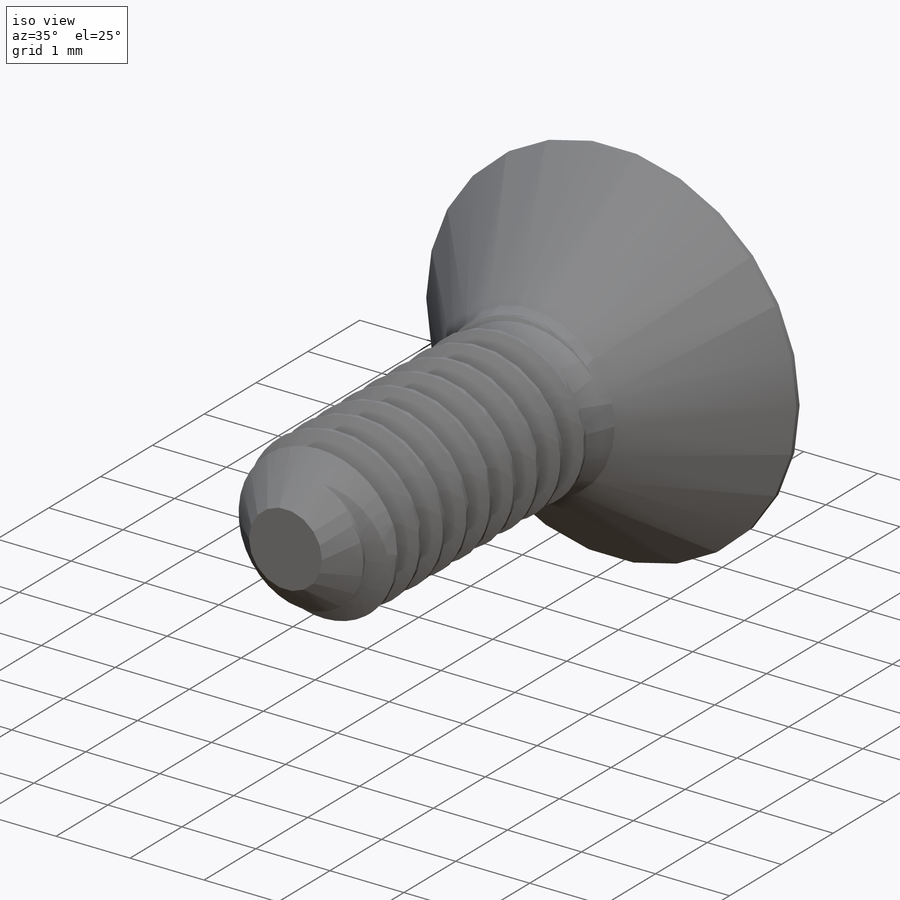
[diagram: iso view]
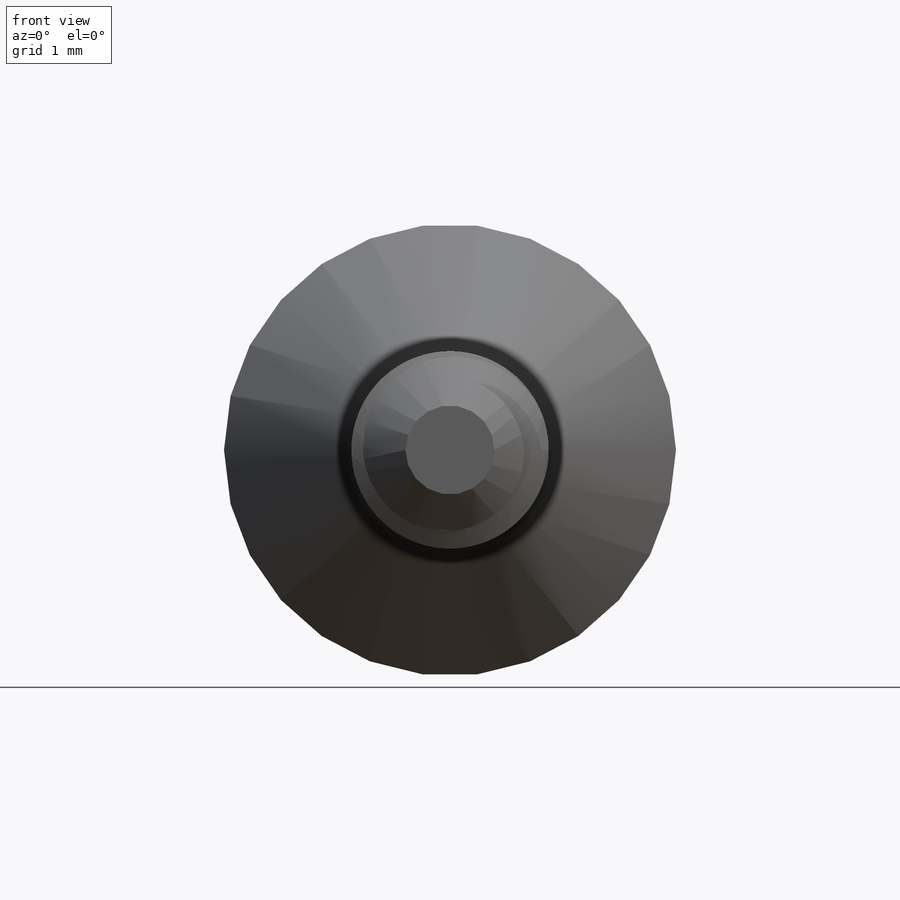
[diagram: front view]
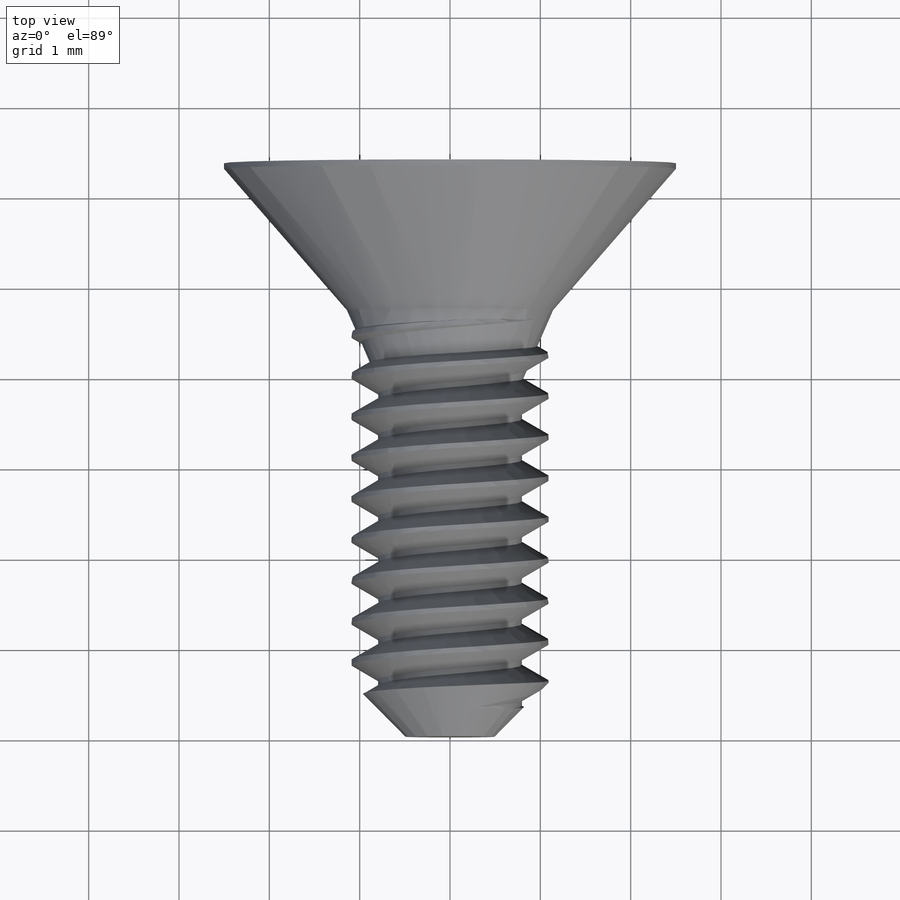
[diagram: top view]
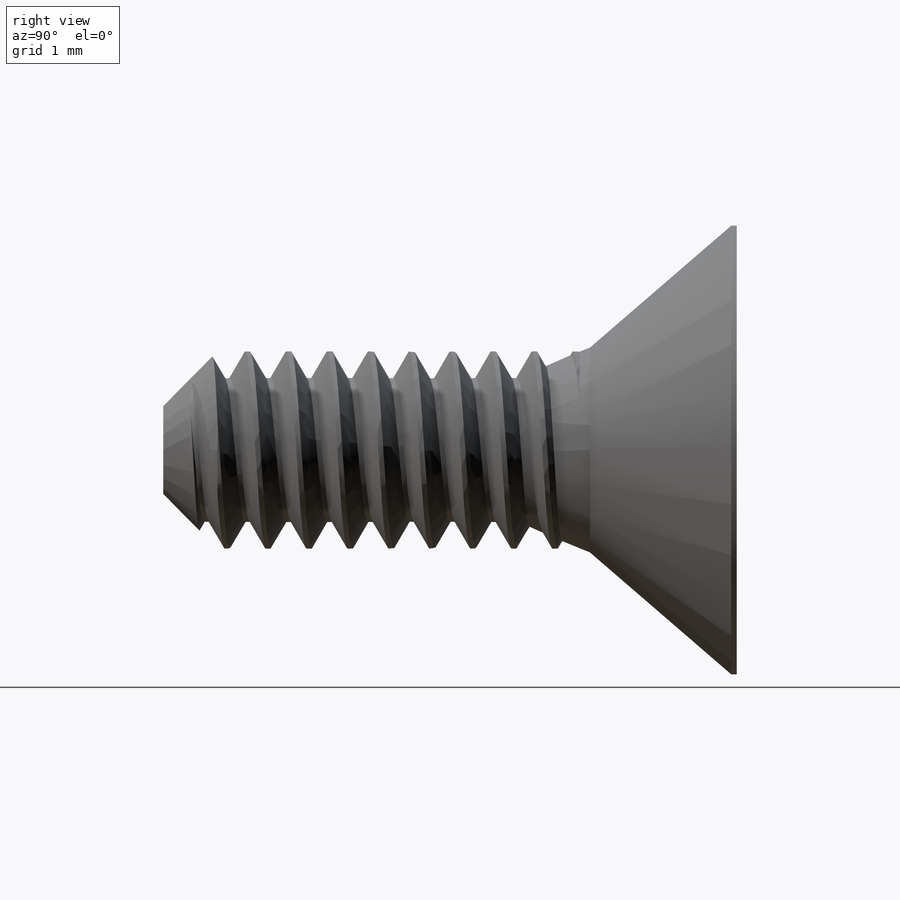
[diagram: right view]
SOLIDWORKS PART (.sldprt)
format: sldprt  version: not decoded by parser v0  size: 493,056 bytes
history: native  units: mm
features: sketch x11, extrude x2, cut_revolve x2, revolve x2, cut_extrude x2, material x1, helix x1, sweep x1 (+11 scaffold rows collapsed)
feature tree (33):
  scaffold x11  (default folders/planes/origin — collapsed)
  material  "Material <not specified>"
  sketch  "Sketch1"  dims[OD=2.1844mm]
  extrude  "Extrude1"  Depth=6.35mm screw length=6.35mm
  sketch  "Sketch2"
  helix  "Helix/Spiral1"  Pitch=6.803571mm pitch=0.453571mm
  sketch  "Sketch3"  dims[c1.D1=~0.056696mm c1.D2=~0.226786mm c1.D3=~1.069256mm c2.D3=60.0deg]
  sweep  "Cut-Sweep1"
  sketch  "Sketch4"  dims[c1.D1=~3.187432mm c2.D1=45.0deg c2.D2=0.3048mm]
  cut_revolve  "Cut-Revolve1"  Angle=360deg
  sketch  "Sketch5"  dims[c1.Thread min=38.1mm c1.D2=0.635mm c1.D3=0.3302mm c1.D1=0.3302mm c2.D2=0.05mm c2.D3=1.0541mm c3.D3=30.0deg]
  revolve  "partially thread"  Angle=360deg
  sketch  "Sketch6"  dims[head dia=5.0038mm]
  extrude  "Extrude2"  Depth=1.6256mm head depth=1.6256mm
  sketch  "Sketch10"  dims[c1.D1=18.8mm c2.D1=45.0deg c3.D1=~9.872629mm c4.D1=41.0deg c4.D2=0.05mm]
  cut_revolve  "Cut-Revolve2"  Angle=360deg
  sketch  "Sketch11"  dims[c1.D1=~3.045059mm c2.D1=23.5deg]
  revolve  "Revolve1"  Angle=360deg
  sketch  "Sketch7"  dims[hex dia=1.27mm]
  cut_extrude  "Cut-Extrude1"  Depth=0.9525mm
  sketch  "Sketch8"
  cut_extrude  "Cut-Extrude2"  [1 undecoded]
  sketch  "Sketch9"  dims[D1=~2.494643mm]
decode coverage: 17 of 21 modeling features carry decoded parameters
note: ~ marks probable driven/reference dimensions
note: 1 parameter value undecoded
note: suppression state not decoded; provenance and decode notes live in map.json
